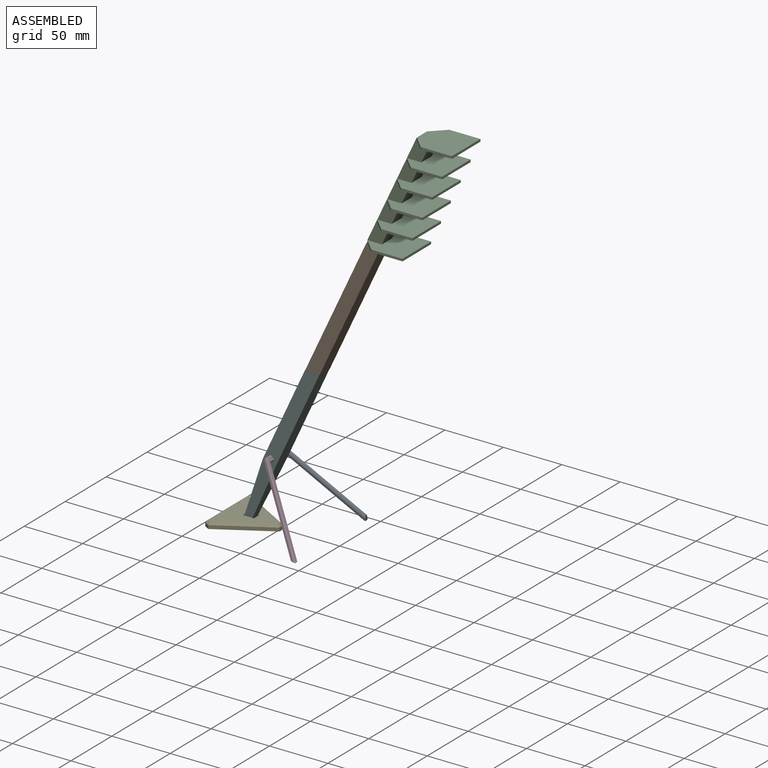
[diagram: assembled view]
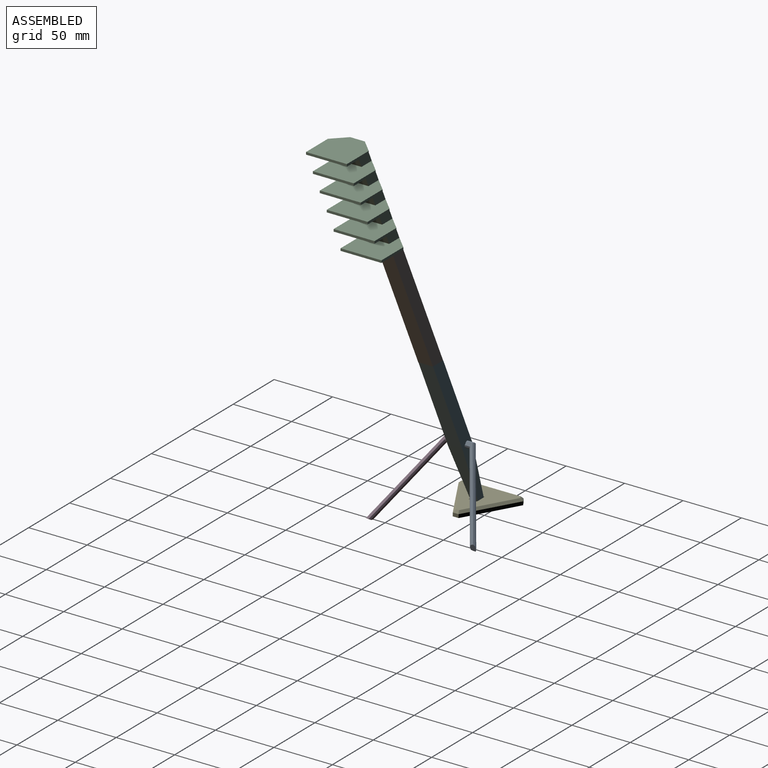
[diagram: assembled view, second angle]
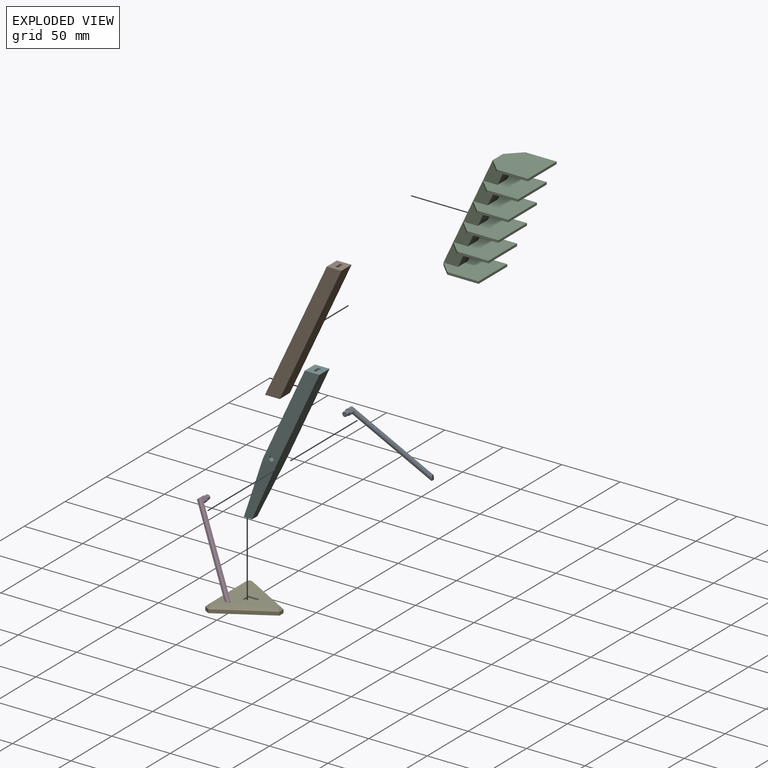
[diagram: exploded view]
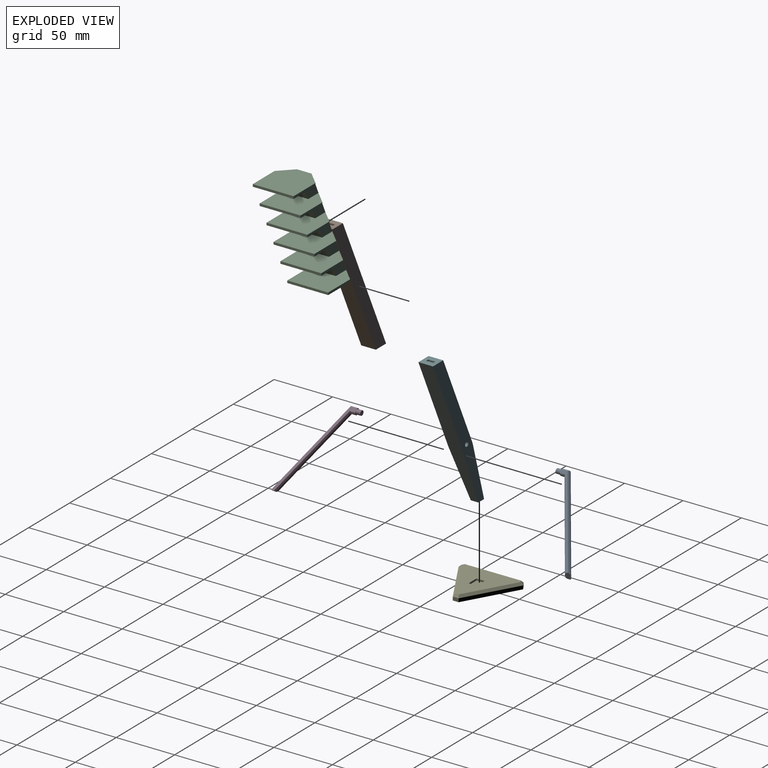
[diagram: exploded view, second angle]
ASSEMBLY  parts=6 mates=11
PART A: 20 faces, bbox 74x44.1x4 mm
  f0: plane 73.09x34.08mm, normal (-0.42,-0.91,0), area 159.1mm2, adj f4,f11,f17,f19
  f1: plane 4x2.5mm, normal (0,1,0), area 2.7mm2, adj f2,f7,f8,f9,f13,f15
  f2: plane 4x2mm, normal (1,0,0), area 8mm2, adj f1,f6,f13,f15
  f3: plane 4x2.5mm, normal (0,1,0), area 2.7mm2, adj f4,f7,f8,f9,f16,f18
  f4: plane 6x2mm, normal (-1,0,0), area 12mm2, adj f0,f3,f16,f18
  f5: plane 3.63x1.74mm, normal (1,0,0), area 3.2mm2, adj f6,f7,f11,f14,f19
  f6: plane 69x32.18mm, normal (0.42,0.91,0), area 151.4mm2, adj f2,f5,f11,f12,f14
  f7: plane 73x39.4mm, normal (0,0,1), area 166.9mm2, adj f1,f3,f5,f14,f15,f18,f19
  f8: plane 70.31x37.77mm, normal (0,0,-1), area 160.3mm2, adj f1,f3,f11,f12,f13,f16,f17
  f9: cylinder r=2mm len=4mm, axis (0,-1,0), area 50.3mm2, adj f1,f3,f10
  f10: plane 4x4mm, normal (0,1,0), area 12.6mm2, adj f9
  f11: plane 4.5x3.64mm, normal (0.61,-0.28,-0.74), area 16.2mm2, adj f0,f5,f6,f8,f12,f17,f19
  f12: plane 68.73x32.02mm, normal (0.3,0.64,-0.71), area 105.4mm2, adj f6,f8,f11,f13
  f13: plane 4.64x1mm, normal (0.71,0,-0.71), area 6.1mm2, adj f1,f2,f8,f12
  f14: plane 70x33.28mm, normal (0.3,0.64,0.71), area 108.4mm2, adj f5,f6,f7,f15
  f15: plane 4.64x1mm, normal (0.71,0,0.71), area 6.1mm2, adj f1,f2,f7,f14
  f16: plane 6x1mm, normal (-0.71,0,-0.71), area 8mm2, adj f3,f4,f8,f17
  f17: plane 71.08x33.78mm, normal (-0.3,-0.64,-0.71), area 109.7mm2, adj f0,f8,f11,f16
  f18: plane 6x1mm, normal (-0.71,0,0.71), area 8mm2, adj f3,f4,f7,f19
  f19: plane 74x34.72mm, normal (-0.3,-0.64,0.71), area 114.2mm2, adj f0,f5,f7,f11,f18
PART B: 16 faces, bbox 65.3x12.5x113.3 mm
  f0: plane 12.5x12.5mm, normal (0,0,-1), area 141.3mm2, adj f2,f3,f4,f5,f11,f12,f13,f14
  f1: plane 12.5x12.5mm, normal (0,0,1), area 141.3mm2, adj f2,f3,f4,f5,f6,f7,f8,f9
  f2: plane 113.29x52.83mm, normal (0.91,0,-0.42), area 1562.5mm2, adj f0,f1,f4,f5
  f3: plane 113.29x52.83mm, normal (-0.91,0,0.42), area 1562.5mm2, adj f0,f1,f4,f5
  f4: plane 113.29x65.33mm, normal (0,-1,0), area 1416.1mm2, adj f0,f1,f2,f3
  f5: plane 113.29x65.33mm, normal (0,1,0), area 1416.1mm2, adj f0,f1,f2,f3
  f6: plane 4x2.5mm, normal (0,1,0), area 10mm2, adj f1,f7,f9,f10
  f7: plane 6x4mm, normal (-1,0,0), area 24mm2, adj f1,f6,f8,f10
  f8: plane 4x2.5mm, normal (0,-1,0), area 10mm2, adj f1,f7,f9,f10
  f9: plane 6x4mm, normal (1,0,0), area 24mm2, adj f1,f6,f8,f10
  f10: plane 6x2.5mm, normal (0,0,1), area 15mm2, adj f6,f7,f8,f9
  f11: plane 4x2.5mm, normal (0,-1,0), area 10mm2, adj f0,f12,f14,f15
  f12: plane 6x4mm, normal (-1,0,0), area 24mm2, adj f0,f11,f13,f15
  f13: plane 4x2.5mm, normal (0,1,0), area 10mm2, adj f0,f12,f14,f15
  f14: plane 6x4mm, normal (1,0,0), area 24mm2, adj f0,f11,f13,f15
  f15: plane 6x2.5mm, normal (0,0,-1), area 15mm2, adj f11,f12,f13,f14
PART C: 64 faces, bbox 80.3x35x92.6 mm
  f0: plane 38x35mm, normal (0,0,-1), area 1188.4mm2, adj f53,f54,f55,f56,f57,f58,f59,f60
  f1: plane 16.13x12.5mm, normal (0.91,0,-0.42), area 222.4mm2, adj f2,f3,f50,f52
  f2: plane 20.02x18.13mm, normal (0,-1,0), area 202.5mm2, adj f1,f17,f46,f50,f52
  f3: plane 20.02x18.13mm, normal (0,1,0), area 202.5mm2, adj f1,f17,f45,f50,f52
  f4: plane 16.13x12.5mm, normal (0.91,0,-0.42), area 222.4mm2, adj f5,f6,f43,f51
  f5: plane 20.02x18.13mm, normal (0,-1,0), area 202.5mm2, adj f4,f17,f39,f43,f51
  f6: plane 20.02x18.13mm, normal (0,1,0), area 202.5mm2, adj f4,f17,f38,f43,f51
  f7: plane 16.13x12.5mm, normal (0.91,0,-0.42), area 222.4mm2, adj f8,f9,f36,f44
  f8: plane 20.02x18.13mm, normal (0,-1,0), area 202.5mm2, adj f7,f17,f32,f36,f44
  f9: plane 20.02x18.13mm, normal (0,1,0), area 202.5mm2, adj f7,f17,f31,f36,f44
  f10: plane 16.13x12.5mm, normal (0.91,0,-0.42), area 222.4mm2, adj f11,f12,f29,f37
  f11: plane 20.02x18.13mm, normal (0,-1,0), area 202.5mm2, adj f10,f17,f25,f29,f37
  f12: plane 20.02x18.13mm, normal (0,1,0), area 202.5mm2, adj f10,f17,f24,f29,f37
  f13: plane 16.13x12.5mm, normal (0.91,0,-0.42), area 222.4mm2, adj f14,f15,f23,f30
  f14: plane 20.02x18.13mm, normal (0,-1,0), area 202.5mm2, adj f13,f17,f19,f23,f30
  f15: plane 20.02x18.13mm, normal (0,1,0), area 202.5mm2, adj f13,f17,f18,f23,f30
  f16: plane 38x35mm, normal (0,0,1), area 1203.4mm2, adj f17,f18,f19,f20,f21,f22
  f17: plane 90.63x42.26mm, normal (-0.91,0,0.42), area 1250mm2, adj f2,f3,f5,f6,f8,f9,f11,f12
  f18: plane 11.25x11.25mm, normal (-0.71,0.71,0), area 31.8mm2, adj f15,f16,f22,f23
  f19: plane 11.25x11.25mm, normal (-0.71,-0.71,0), area 31.8mm2, adj f14,f16,f20,f23
  f20: plane 26.75x2mm, normal (0,-1,0), area 53.5mm2, adj f16,f19,f21,f23
  f21: plane 35x2mm, normal (1,0,0), area 70mm2, adj f16,f20,f22,f23
  f22: plane 26.75x2mm, normal (0,1,0), area 53.5mm2, adj f16,f18,f21,f23
  f23: plane 38x35mm, normal (0,0,-1), area 1058.8mm2, adj f13,f14,f15,f18,f19,f20,f21,f22
  f24: plane 11.25x11.25mm, normal (-0.71,0.71,0), area 31.8mm2, adj f12,f28,f29,f30
  f25: plane 11.25x11.25mm, normal (-0.71,-0.71,0), area 31.8mm2, adj f11,f26,f29,f30
  f26: plane 26.75x2mm, normal (0,-1,0), area 53.5mm2, adj f25,f27,f29,f30
  f27: plane 35x2mm, normal (1,0,0), area 70mm2, adj f26,f28,f29,f30
  f28: plane 26.75x2mm, normal (0,1,0), area 53.5mm2, adj f24,f27,f29,f30
  f29: plane 38x35mm, normal (0,0,-1), area 1058.8mm2, adj f10,f11,f12,f24,f25,f26,f27,f28
  f30: plane 38x35mm, normal (0,0,1), area 1047.2mm2, adj f13,f14,f15,f24,f25,f26,f27,f28
  f31: plane 11.25x11.25mm, normal (-0.71,0.71,0), area 31.8mm2, adj f9,f35,f36,f37
  f32: plane 11.25x11.25mm, normal (-0.71,-0.71,0), area 31.8mm2, adj f8,f33,f36,f37
  f33: plane 26.75x2mm, normal (0,-1,0), area 53.5mm2, adj f32,f34,f36,f37
  f34: plane 35x2mm, normal (1,0,0), area 70mm2, adj f33,f35,f36,f37
  f35: plane 26.75x2mm, normal (0,1,0), area 53.5mm2, adj f31,f34,f36,f37
  f36: plane 38x35mm, normal (0,0,-1), area 1058.8mm2, adj f7,f8,f9,f31,f32,f33,f34,f35
  f37: plane 38x35mm, normal (0,0,1), area 1047.2mm2, adj f10,f11,f12,f31,f32,f33,f34,f35
  f38: plane 11.25x11.25mm, normal (-0.71,0.71,0), area 31.8mm2, adj f6,f42,f43,f44
  f39: plane 11.25x11.25mm, normal (-0.71,-0.71,0), area 31.8mm2, adj f5,f40,f43,f44
  f40: plane 26.75x2mm, normal (0,-1,0), area 53.5mm2, adj f39,f41,f43,f44
  f41: plane 35x2mm, normal (1,0,0), area 70mm2, adj f40,f42,f43,f44
  f42: plane 26.75x2mm, normal (0,1,0), area 53.5mm2, adj f38,f41,f43,f44
  f43: plane 38x35mm, normal (0,0,-1), area 1058.8mm2, adj f4,f5,f6,f38,f39,f40,f41,f42
  f44: plane 38x35mm, normal (0,0,1), area 1047.2mm2, adj f7,f8,f9,f38,f39,f40,f41,f42
  f45: plane 11.25x11.25mm, normal (-0.71,0.71,0), area 31.8mm2, adj f3,f49,f50,f51
  f46: plane 11.25x11.25mm, normal (-0.71,-0.71,0), area 31.8mm2, adj f2,f47,f50,f51
  f47: plane 26.75x2mm, normal (0,-1,0), area 53.5mm2, adj f46,f48,f50,f51
  f48: plane 35x2mm, normal (1,0,0), area 70mm2, adj f47,f49,f50,f51
  f49: plane 26.75x2mm, normal (0,1,0), area 53.5mm2, adj f45,f48,f50,f51
  f50: plane 38x35mm, normal (0,0,-1), area 1058.8mm2, adj f1,f2,f3,f45,f46,f47,f48,f49
  f51: plane 38x35mm, normal (0,0,1), area 1047.2mm2, adj f4,f5,f6,f45,f46,f47,f48,f49
  f52: plane 38x35mm, normal (0,0,1), area 1047.2mm2, adj f1,f2,f3,f53,f55,f56,f57,f58
  f53: plane 11.25x11.25mm, normal (-0.71,0.71,0), area 31.8mm2, adj f0,f52,f54,f58
  f54: plane 12.5x2mm, normal (-1,0,0), area 25mm2, adj f0,f17,f53,f55
  f55: plane 11.25x11.25mm, normal (-0.71,-0.71,0), area 31.8mm2, adj f0,f52,f54,f56
  f56: plane 26.75x2mm, normal (0,-1,0), area 53.5mm2, adj f0,f52,f55,f57
  f57: plane 35x2mm, normal (1,0,0), area 70mm2, adj f0,f52,f56,f58
  f58: plane 26.75x2mm, normal (0,1,0), area 53.5mm2, adj f0,f52,f53,f57
  f59: plane 4x2.5mm, normal (0,-1,0), area 10mm2, adj f0,f60,f62,f63
  f60: plane 6x4mm, normal (-1,0,0), area 24mm2, adj f0,f59,f61,f63
  f61: plane 4x2.5mm, normal (0,1,0), area 10mm2, adj f0,f60,f62,f63
  f62: plane 6x4mm, normal (1,0,0), area 24mm2, adj f0,f59,f61,f63
  f63: plane 6x2.5mm, normal (0,0,-1), area 15mm2, adj f59,f60,f61,f62
PART D: same geometry as A
PART E: 19 faces, bbox 55x47.6x5 mm
  f0: plane 50.38x43.63mm, normal (0,0,1), area 1143.7mm2, adj f8,f9,f10,f11,f12,f13,f14,f15
  f1: plane 50x3mm, normal (0,-1,0), area 150mm2, adj f4,f5,f6,f8
  f2: plane 43.3x25mm, normal (0.87,0.5,0), area 150mm2, adj f4,f5,f7,f11
  f3: plane 43.3x25mm, normal (-0.87,0.5,0), area 150mm2, adj f4,f6,f7,f12
  f4: plane 55x47.63mm, normal (0,0,-1), area 1526.4mm2, adj f1,f2,f3,f5,f6,f7
  f5: plane 4.33x3mm, normal (0.87,-0.5,0), area 15mm2, adj f1,f2,f4,f9
  f6: plane 4.33x3mm, normal (-0.87,-0.5,0), area 15mm2, adj f1,f3,f4,f10
  f7: plane 5x3mm, normal (0,1,0), area 15mm2, adj f2,f3,f4,f13
  f8: plane 50x2mm, normal (0,-0.71,0.71), area 138.2mm2, adj f0,f1,f9,f10
  f9: plane 4.33x3.65mm, normal (0.61,-0.35,0.71), area 10.9mm2, adj f0,f5,f8,f11
  f10: plane 4.33x3.65mm, normal (-0.61,-0.35,0.71), area 10.9mm2, adj f0,f6,f8,f12
  f11: plane 43.3x26.15mm, normal (0.61,0.35,0.71), area 138.2mm2, adj f0,f2,f9,f13
  f12: plane 43.3x26.15mm, normal (-0.61,0.35,0.71), area 138.2mm2, adj f0,f3,f10,f13
  f13: plane 5x2mm, normal (0,0.71,0.71), area 10.9mm2, adj f0,f7,f11,f12
  f14: plane 7x1.5mm, normal (0,1,0), area 10.5mm2, adj f0,f15,f16,f17
  f15: plane 9.5x1.5mm, normal (-1,0,0), area 13.1mm2, adj f0,f14,f17,f18
  f16: plane 9.5x1.5mm, normal (1,0,0), area 13.1mm2, adj f0,f14,f17,f18
  f17: plane 8x7mm, normal (0,0,1), area 56mm2, adj f14,f15,f16,f18
  f18: plane 7x1.5mm, normal (0,-0.71,0.71), area 14.8mm2, adj f0,f15,f16,f17
PART F: 19 faces, bbox 66.8x12.5x128.9 mm
  f0: plane 12.5x12.5mm, normal (0,0,1), area 141.2mm2, adj f4,f5,f8,f9,f10,f11,f12,f13
  f1: plane 7x6.5mm, normal (0,0,-1), area 45.5mm2, adj f2,f3,f6,f7
  f2: plane 51.7x24.11mm, normal (0.91,0,-0.42), area 547.5mm2, adj f1,f4,f5,f6,f7,f8
  f3: plane 51.7x18.61mm, normal (-0.94,0,0.34), area 527.4mm2, adj f1,f4,f5,f6,f7,f9
  f4: plane 78.86x48.76mm, normal (0,-1,0), area 973mm2, adj f0,f2,f3,f6,f8,f9,f17
  f5: plane 78.86x48.76mm, normal (0,1,0), area 973mm2, adj f0,f2,f3,f7,f8,f9,f15
  f6: plane 50x30.32mm, normal (0,-1,-0.06), area 483.9mm2, adj f1,f2,f3,f4
  f7: plane 50x30.32mm, normal (0,1,-0.06), area 483.9mm2, adj f1,f2,f3,f5
  f8: plane 77.16x35.65mm, normal (0.91,0,-0.42), area 1062.5mm2, adj f0,f2,f4,f5
  f9: plane 77.16x35.65mm, normal (-0.91,0,0.42), area 1062.5mm2, adj f0,f3,f4,f5
  f10: plane 4x2.5mm, normal (0,1,0), area 10mm2, adj f0,f11,f13,f14
  f11: plane 6x4mm, normal (-1,0,0), area 24mm2, adj f0,f10,f12,f14
  f12: plane 4x2.5mm, normal (0,-1,0), area 10mm2, adj f0,f11,f13,f14
  f13: plane 6x4mm, normal (1,0,0), area 24mm2, adj f0,f10,f12,f14
  f14: plane 6x2.5mm, normal (0,0,1), area 15mm2, adj f10,f11,f12,f13
  f15: cylinder r=2mm len=4mm, axis (0,1,0), area 50.3mm2, adj f5,f16
  f16: plane 4x4mm, normal (0,1,0), area 12.6mm2, adj f15
  f17: cylinder r=2mm len=4mm, axis (0,-1,0), area 50.3mm2, adj f4,f18
  f18: plane 4x4mm, normal (0,-1,0), area 12.6mm2, adj f17
PLACE A rot(axis=(0.91,0,-0.41),180deg) t=(-62.21,29.26,32.13)mm
PLACE B t=(-23.91,29.26,108.56)mm
PLACE C t=(29.5,29.26,223.85)mm
PLACE D rot(axis=(0,1,0),48.9deg) t=(-65.22,16.76,29.5)mm
PLACE E rot(axis=(0,0,-1),89.7deg) t=(-108.34,-7.29,-23.8)mm
PLACE F t=(-83.82,29.26,-20.3)mm fixed
MATE planar B.f4 <-> F.f4  axis (0,-1,0) through (-3.74,16.76,165.2)mm
MATE planar F.f1 <-> E.f17  axis (0,0,-1) through (-87.32,23.01,-20.3)mm
MATE planar F.f0 <-> B.f0  axis (0,0,1) through (-30.32,23.01,108.56)mm
MATE planar F.f15 <-> A.f1  axis (0,1,0) through (-65.36,29.26,32.7)mm
MATE planar D.f7 <-> A.f8  axis (0.75,0,0.66) through (-42.46,-3.19,9.51)mm
MATE parallel C.f17 <-> B.f3  axis (-0.91,0,0.42) through (38.13,23.01,269.16)mm
MATE planar F.f4 <-> D.f3  axis (0,-1,0) through (-48.31,16.76,69.61)mm
MATE cylindrical F.f15 <-> D.f9  axis (0,-1,0) through (-65.36,20.76,32.7)mm
MATE cylindrical F.f15 <-> A.f9  axis (0,1,0) through (-65.36,29.26,32.7)mm
MATE planar C.f0 <-> B.f1  axis (0,0,-1) through (37.78,23.01,221.85)mm
MATE planar C.f2 <-> B.f4  axis (0,-1,0) through (27,16.76,231.95)mm
